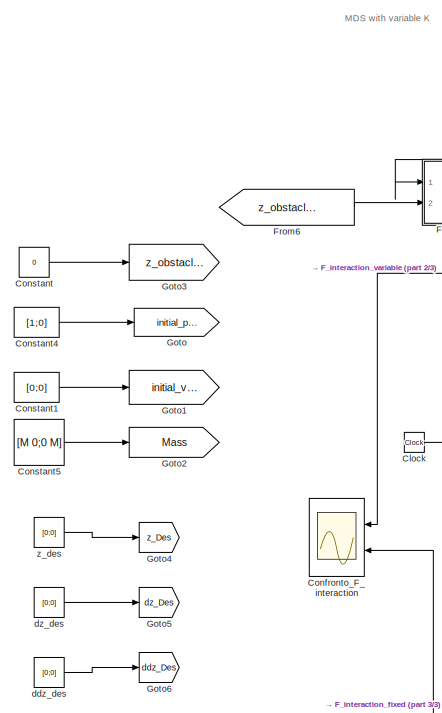
[diagram: root canvas - part 1/3, middle left region]
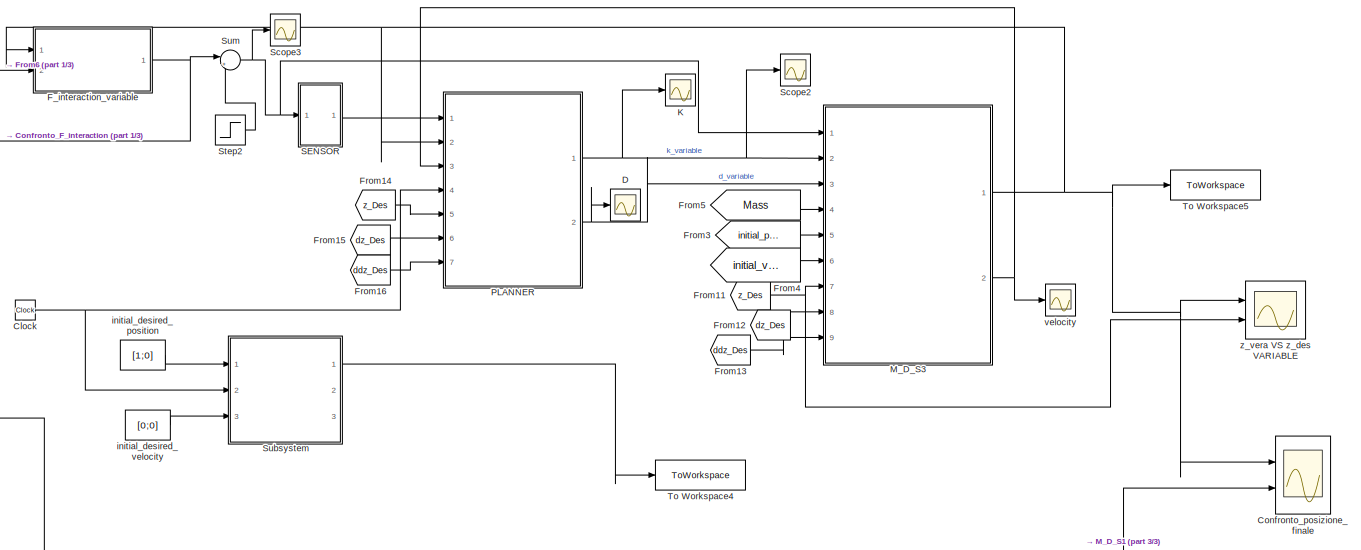
[diagram: root canvas - part 2/3, full width, middle band]
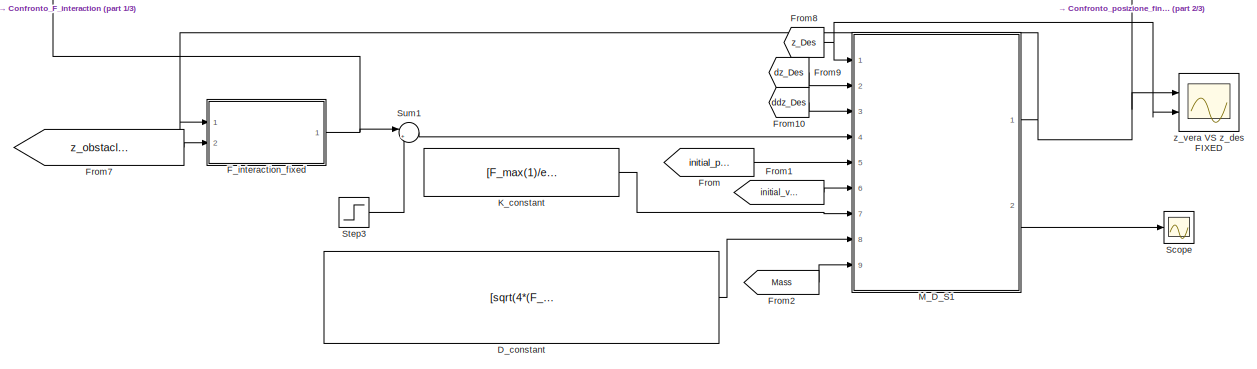
[diagram: root canvas - part 3/3, bottom center region]
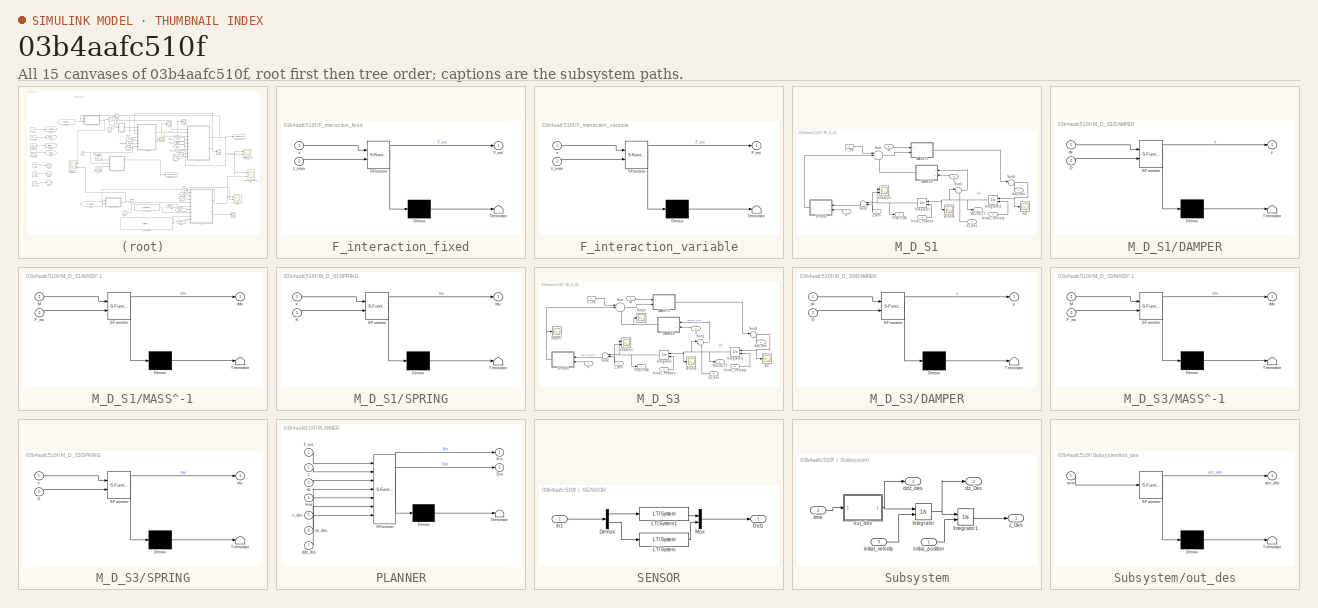
[diagram: thumbnail index - all 15 canvases of the model, root first then tree order]
MODEL slx_03b4aafc510f
KIND model
CONFIG AbsTol = auto
CONFIG EnableMultiTasking = off
CONFIG FixedStep = 0.001
CONFIG MaxStep = auto
CONFIG MinStep = auto
CONFIG RelTol = 1e-3
CONFIG SampleTimeConstraint = Unconstrained
CONFIG SolverName = FixedStepAuto
CONFIG StartTime = 0.0
CONFIG StopTime = 10
BLOCK [Clock] Clock
BLOCK [Scope] Confronto_F_interaction
  Commented = on
  Floating = off
  NumInputPorts = 2
  Ports = [2]
  ScopeSpecificationString = Simulink.scopes.TimeScopeBlockCfg('CurrentConfiguration', extmgr.ConfigurationSet(extmgr.Configuration('Core','General UI',true),extmgr.Configuration('Core','Source UI',true),extmgr.Configuration('Sources','WiredSimulink',true,'DataLoggingVariableName','ScopeData3'),extmgr.Configuration('Visuals','Time Domain',true,'SerializedDisplays',{struct('MinYLimReal','-35.14791','MaxYLimReal','316.3312','YL...<+1582ch>
BLOCK [Scope] Confronto_posizione_finale
  Floating = off
  NumInputPorts = 2
  Ports = [2]
  ScopeSpecificationString = Simulink.scopes.TimeScopeBlockCfg('CurrentConfiguration', extmgr.ConfigurationSet(extmgr.Configuration('Core','General UI',true),extmgr.Configuration('Core','Source UI',true),extmgr.Configuration('Sources','WiredSimulink',true,'DataLoggingVariableName','ScopeData4'),extmgr.Configuration('Visuals','Time Domain',true,'SerializedDisplays',{struct('MinYLimReal','-490.00181','MaxYLimReal','415.41886','...<+1647ch>
BLOCK [Constant] Constant
  Value = 0
BLOCK [Constant] Constant1
  Value = [0;0]
BLOCK [Constant] Constant4
  Value = [1;0]
BLOCK [Constant] Constant5
  Value = [M 0;0 M]
BLOCK [Scope] D
  Floating = off
  NumInputPorts = 1
  Ports = [1]
  ScopeSpecificationString = Simulink.scopes.TimeScopeBlockCfg('CurrentConfiguration', extmgr.ConfigurationSet(extmgr.Configuration('Core','General UI',true),extmgr.Configuration('Core','Source UI',true),extmgr.Configuration('Sources','WiredSimulink',true,'DataLoggingVariableName','ScopeData2'),extmgr.Configuration('Visuals','Time Domain',true,'SerializedDisplays',{struct('MinYLimReal','-5.00000','MaxYLimReal','45.00000','YLa...<+1449ch>
BLOCK [Constant] D_constant
  Value = [sqrt(4*(F_max(1)/e_max)*mass)/10 0; 0 sqrt(4*(F_max(2)/e_max)*mass)/10]
BLOCK [SubSystem] F_interaction_fixed
  Commented = on
  ErrorFcn = Stateflow.Translate.translate
  PermitHierarchicalResolution = ExplicitOnly
  Ports = [2, 1]
  RequestExecContextInheritance = off
  SFBlockType = MATLAB Function
  TreatAsAtomicUnit = on
BLOCK [Demux] F_interaction_fixed/ Demux 
  Outputs = 1
  Ports = [1, 1]
BLOCK [S-Function] F_interaction_fixed/ SFunction 
  EnableBusSupport = on
  FunctionName = sf_sfun
  PortCounts = [2 2]
  Ports = [2, 2]
  SFcnIsStateOwnerBlock = off
  SFunctionDeploymentMode = off
  Tag = Stateflow S-Function 6
BLOCK [Terminator] F_interaction_fixed/ Terminator 
BLOCK [Outport] F_interaction_fixed/F_ext
BLOCK [Inport] F_interaction_fixed/z
BLOCK [Inport] F_interaction_fixed/z_muro
  Port = 2
BLOCK [SubSystem] F_interaction_variable
  Commented = on
  ErrorFcn = Stateflow.Translate.translate
  PermitHierarchicalResolution = ExplicitOnly
  Ports = [2, 1]
  RequestExecContextInheritance = off
  SFBlockType = MATLAB Function
  TreatAsAtomicUnit = on
BLOCK [Demux] F_interaction_variable/ Demux 
  Outputs = 1
  Ports = [1, 1]
BLOCK [S-Function] F_interaction_variable/ SFunction 
  EnableBusSupport = on
  FunctionName = sf_sfun
  PortCounts = [2 2]
  Ports = [2, 2]
  SFcnIsStateOwnerBlock = off
  SFunctionDeploymentMode = off
  Tag = Stateflow S-Function 2
BLOCK [Terminator] F_interaction_variable/ Terminator 
BLOCK [Outport] F_interaction_variable/F_ext
BLOCK [Inport] F_interaction_variable/z
BLOCK [Inport] F_interaction_variable/z_muro
  Port = 2
BLOCK [From] From
  GotoTag = initial_pos
BLOCK [From] From1
  GotoTag = initial_vel
BLOCK [From] From10
  GotoTag = ddz_Des
BLOCK [From] From11
  GotoTag = z_Des
BLOCK [From] From12
  GotoTag = dz_Des
BLOCK [From] From13
  GotoTag = ddz_Des
BLOCK [From] From14
  GotoTag = z_Des
BLOCK [From] From15
  GotoTag = dz_Des
BLOCK [From] From16
  GotoTag = ddz_Des
BLOCK [From] From2
  GotoTag = Mass
BLOCK [From] From3
  GotoTag = initial_pos
BLOCK [From] From4
  GotoTag = initial_vel
BLOCK [From] From5
  GotoTag = Mass
BLOCK [From] From6
  GotoTag = z_obstacle_for_interaction
BLOCK [From] From7
  GotoTag = z_obstacle_for_interaction
BLOCK [From] From8
  GotoTag = z_Des
BLOCK [From] From9
  GotoTag = dz_Des
BLOCK [Goto] Goto
  GotoTag = initial_pos
BLOCK [Goto] Goto1
  GotoTag = initial_vel
BLOCK [Goto] Goto2
  GotoTag = Mass
BLOCK [Goto] Goto3
  GotoTag = z_obstacle_for_interaction
BLOCK [Goto] Goto4
  GotoTag = z_Des
BLOCK [Goto] Goto5
  GotoTag = dz_Des
BLOCK [Goto] Goto6
  GotoTag = ddz_Des
BLOCK [Scope] K
  Floating = off
  NumInputPorts = 1
  Ports = [1]
  ScopeSpecificationString = Simulink.scopes.TimeScopeBlockCfg('CurrentConfiguration', extmgr.ConfigurationSet(extmgr.Configuration('Core','General UI',true),extmgr.Configuration('Core','Source UI',true),extmgr.Configuration('Sources','WiredSimulink',true,'DataLoggingVariableName','ScopeData1'),extmgr.Configuration('Visuals','Time Domain',true,'SerializedDisplays',{struct('MinYLimReal','43.59006','MaxYLimReal','154.41582','YL...<+1497ch>
BLOCK [Constant] K_constant
  Value = [F_max(1)/e_max 0; 0 F_max(2)/e_max]
BLOCK [SubSystem] M_D_S1
  Ports = [9, 2]
  RequestExecContextInheritance = off
BLOCK [Inport] M_D_S1/D
  Port = 8
BLOCK [SubSystem] M_D_S1/DAMPER
  ErrorFcn = Stateflow.Translate.translate
  PermitHierarchicalResolution = ExplicitOnly
  Ports = [2, 1]
  RequestExecContextInheritance = off
  SFBlockType = MATLAB Function
  TreatAsAtomicUnit = on
BLOCK [Demux] M_D_S1/DAMPER/ Demux 
  Outputs = 1
  Ports = [1, 1]
BLOCK [S-Function] M_D_S1/DAMPER/ SFunction 
  EnableBusSupport = on
  FunctionName = sf_sfun
  PortCounts = [2 2]
  Ports = [2, 2]
  SFcnIsStateOwnerBlock = off
  SFunctionDeploymentMode = off
  Tag = Stateflow S-Function 3
BLOCK [Terminator] M_D_S1/DAMPER/ Terminator 
BLOCK [Inport] M_D_S1/DAMPER/D
  Port = 2
BLOCK [Inport] M_D_S1/DAMPER/dx
BLOCK [Outport] M_D_S1/DAMPER/y
BLOCK [Inport] M_D_S1/F_ext
  Port = 4
BLOCK [Inport] M_D_S1/Initial_Position
  Port = 5
BLOCK [Inport] M_D_S1/Initial_Velocity
  Port = 6
BLOCK [Integrator] M_D_S1/Integrator
  InitialConditionSource = external
  Ports = [2, 1]
BLOCK [Integrator] M_D_S1/Integrator1
  InitialConditionSource = external
  Ports = [2, 1]
BLOCK [Inport] M_D_S1/K
  Port = 7
BLOCK [Inport] M_D_S1/M
  Port = 9
BLOCK [SubSystem] M_D_S1/MASS^-1
  ErrorFcn = Stateflow.Translate.translate
  PermitHierarchicalResolution = ExplicitOnly
  Ports = [2, 1]
  RequestExecContextInheritance = off
  SFBlockType = MATLAB Function
  TreatAsAtomicUnit = on
BLOCK [Demux] M_D_S1/MASS^-1/ Demux 
  Outputs = 1
  Ports = [1, 1]
BLOCK [S-Function] M_D_S1/MASS^-1/ SFunction 
  EnableBusSupport = on
  FunctionName = sf_sfun
  PortCounts = [2 2]
  Ports = [2, 2]
  SFcnIsStateOwnerBlock = off
  SFunctionDeploymentMode = off
  Tag = Stateflow S-Function 4
BLOCK [Terminator] M_D_S1/MASS^-1/ Terminator 
BLOCK [Inport] M_D_S1/MASS^-1/F_tot
  Port = 2
BLOCK [Inport] M_D_S1/MASS^-1/M
BLOCK [Outport] M_D_S1/MASS^-1/ddx
BLOCK [Outport] M_D_S1/POSITION
BLOCK [SubSystem] M_D_S1/SPRING
  ErrorFcn = Stateflow.Translate.translate
  PermitHierarchicalResolution = ExplicitOnly
  Ports = [2, 1]
  RequestExecContextInheritance = off
  SFBlockType = MATLAB Function
  TreatAsAtomicUnit = on
BLOCK [Demux] M_D_S1/SPRING/ Demux 
  Outputs = 1
  Ports = [1, 1]
BLOCK [S-Function] M_D_S1/SPRING/ SFunction 
  EnableBusSupport = on
  FunctionName = sf_sfun
  PortCounts = [2 2]
  Ports = [2, 2]
  SFcnIsStateOwnerBlock = off
  SFunctionDeploymentMode = off
  Tag = Stateflow S-Function 5
BLOCK [Terminator] M_D_S1/SPRING/ Terminator 
BLOCK [Inport] M_D_S1/SPRING/K
  Port = 2
BLOCK [Outport] M_D_S1/SPRING/tau
BLOCK [Inport] M_D_S1/SPRING/x
BLOCK [Sum] M_D_S1/Sum
  Inputs = |+++
  Ports = [3, 1]
BLOCK [Sum] M_D_S1/Sum1
  Inputs = |+-
  Ports = [2, 1]
BLOCK [Sum] M_D_S1/Sum2
  Inputs = |+-
  Ports = [2, 1]
BLOCK [Sum] M_D_S1/Sum3
  Inputs = |++
  Ports = [2, 1]
BLOCK [Outport] M_D_S1/VELOCITY
  Port = 2
BLOCK [Scope] M_D_S1/acc
  Floating = off
  NumInputPorts = 1
  Ports = [1]
  ScopeSpecificationString = Simulink.scopes.TimeScopeBlockCfg('CurrentConfiguration', extmgr.ConfigurationSet(extmgr.Configuration('Core','General UI',true),extmgr.Configuration('Core','Source UI',true),extmgr.Configuration('Sources','WiredSimulink',true,'DataLoggingVariableName','ScopeData6'),extmgr.Configuration('Visuals','Time Domain',true,'SerializedDisplays',{struct('MinYLimReal','-6.18449','MaxYLimReal','6.24278','YLab...<+1392ch>
BLOCK [Inport] M_D_S1/ddz_des
  Port = 3
BLOCK [Inport] M_D_S1/dz_des
  Port = 2
BLOCK [Scope] M_D_S1/posizione
  Floating = off
  NumInputPorts = 2
  Ports = [2]
  ScopeSpecificationString = Simulink.scopes.TimeScopeBlockCfg('CurrentConfiguration', extmgr.ConfigurationSet(extmgr.Configuration('Core','General UI',true),extmgr.Configuration('Core','Source UI',true),extmgr.Configuration('Sources','WiredSimulink',true,'DataLoggingVariableName','ScopeData8'),extmgr.Configuration('Visuals','Time Domain',true,'SerializedDisplays',{struct('MinYLimReal','-1.73628','MaxYLimReal','0.19292','YLab...<+1402ch>
BLOCK [Scope] M_D_S1/velocita
  Floating = off
  NumInputPorts = 1
  Ports = [1]
  ScopeSpecificationString = Simulink.scopes.TimeScopeBlockCfg('CurrentConfiguration', extmgr.ConfigurationSet(extmgr.Configuration('Core','General UI',true),extmgr.Configuration('Core','Source UI',true),extmgr.Configuration('Sources','WiredSimulink',true,'DataLoggingVariableName','ScopeData7'),extmgr.Configuration('Visuals','Time Domain',true,'SerializedDisplays',{struct('MinYLimReal','-0.56067','MaxYLimReal','0.06462','YLab...<+1399ch>
BLOCK [Inport] M_D_S1/z_des
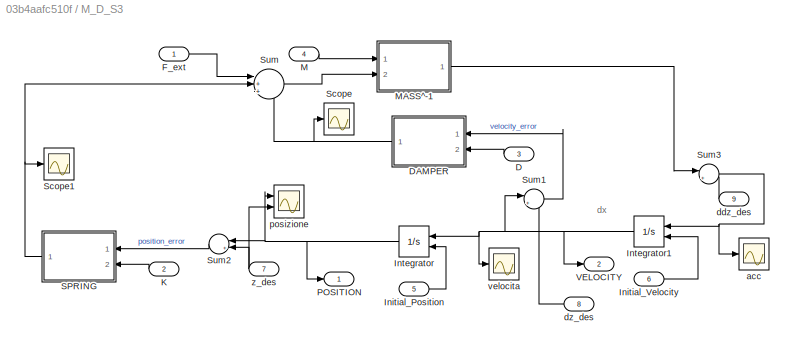
BLOCK [SubSystem] M_D_S3
  Ports = [9, 2]
  RequestExecContextInheritance = off
BLOCK [Inport] M_D_S3/D
  Port = 3
BLOCK [SubSystem] M_D_S3/DAMPER
  ErrorFcn = Stateflow.Translate.translate
  PermitHierarchicalResolution = ExplicitOnly
  Ports = [2, 1]
  RequestExecContextInheritance = off
  SFBlockType = MATLAB Function
  TreatAsAtomicUnit = on
BLOCK [Demux] M_D_S3/DAMPER/ Demux 
  Outputs = 1
  Ports = [1, 1]
BLOCK [S-Function] M_D_S3/DAMPER/ SFunction 
  EnableBusSupport = on
  FunctionName = sf_sfun
  PortCounts = [2 2]
  Ports = [2, 2]
  SFcnIsStateOwnerBlock = off
  SFunctionDeploymentMode = off
  Tag = Stateflow S-Function 11
BLOCK [Terminator] M_D_S3/DAMPER/ Terminator 
BLOCK [Inport] M_D_S3/DAMPER/D
  Port = 2
BLOCK [Inport] M_D_S3/DAMPER/dx
BLOCK [Outport] M_D_S3/DAMPER/y
BLOCK [Inport] M_D_S3/F_ext
BLOCK [Inport] M_D_S3/Initial_Position
  Port = 5
BLOCK [Inport] M_D_S3/Initial_Velocity
  Port = 6
BLOCK [Integrator] M_D_S3/Integrator
  InitialConditionSource = external
  Ports = [2, 1]
BLOCK [Integrator] M_D_S3/Integrator1
  InitialConditionSource = external
  Ports = [2, 1]
BLOCK [Inport] M_D_S3/K
  Port = 2
BLOCK [Inport] M_D_S3/M
  Port = 4
BLOCK [SubSystem] M_D_S3/MASS^-1
  ErrorFcn = Stateflow.Translate.translate
  PermitHierarchicalResolution = ExplicitOnly
  Ports = [2, 1]
  RequestExecContextInheritance = off
  SFBlockType = MATLAB Function
  TreatAsAtomicUnit = on
BLOCK [Demux] M_D_S3/MASS^-1/ Demux 
  Outputs = 1
  Ports = [1, 1]
BLOCK [S-Function] M_D_S3/MASS^-1/ SFunction 
  EnableBusSupport = on
  FunctionName = sf_sfun
  PortCounts = [2 2]
  Ports = [2, 2]
  SFcnIsStateOwnerBlock = off
  SFunctionDeploymentMode = off
  Tag = Stateflow S-Function 12
BLOCK [Terminator] M_D_S3/MASS^-1/ Terminator 
BLOCK [Inport] M_D_S3/MASS^-1/F_tot
  Port = 2
BLOCK [Inport] M_D_S3/MASS^-1/M
BLOCK [Outport] M_D_S3/MASS^-1/ddx
BLOCK [Outport] M_D_S3/POSITION
BLOCK [SubSystem] M_D_S3/SPRING
  ErrorFcn = Stateflow.Translate.translate
  PermitHierarchicalResolution = ExplicitOnly
  Ports = [2, 1]
  RequestExecContextInheritance = off
  SFBlockType = MATLAB Function
  TreatAsAtomicUnit = on
BLOCK [Demux] M_D_S3/SPRING/ Demux 
  Outputs = 1
  Ports = [1, 1]
BLOCK [S-Function] M_D_S3/SPRING/ SFunction 
  EnableBusSupport = on
  FunctionName = sf_sfun
  PortCounts = [2 2]
  Ports = [2, 2]
  SFcnIsStateOwnerBlock = off
  SFunctionDeploymentMode = off
  Tag = Stateflow S-Function 13
BLOCK [Terminator] M_D_S3/SPRING/ Terminator 
BLOCK [Inport] M_D_S3/SPRING/K
  Port = 2
BLOCK [Outport] M_D_S3/SPRING/tau
BLOCK [Inport] M_D_S3/SPRING/x
BLOCK [Scope] M_D_S3/Scope
  Floating = off
  NumInputPorts = 1
  Ports = [1]
  ScopeSpecificationString = Simulink.scopes.TimeScopeBlockCfg('CurrentConfiguration', extmgr.ConfigurationSet(extmgr.Configuration('Core','General UI',true),extmgr.Configuration('Core','Source UI',true),extmgr.Configuration('Sources','WiredSimulink',true,'DataLoggingVariableName','ScopeData15'),extmgr.Configuration('Visuals','Time Domain',true,'SerializedDisplays',{struct('MinYLimReal','-37.99931','MaxYLimReal','6.12026','YL...<+1429ch>
BLOCK [Scope] M_D_S3/Scope1
  Floating = off
  NumInputPorts = 1
  Ports = [1]
  ScopeSpecificationString = Simulink.scopes.TimeScopeBlockCfg('CurrentConfiguration', extmgr.ConfigurationSet(extmgr.Configuration('Core','General UI',true),extmgr.Configuration('Core','Source UI',true),extmgr.Configuration('Sources','WiredSimulink',true,'DataLoggingVariableName','ScopeData17'),extmgr.Configuration('Visuals','Time Domain',true,'SerializedDisplays',{struct('MinYLimReal','-42.49417','MaxYLimReal','4.72157','YL...<+1454ch>
BLOCK [Sum] M_D_S3/Sum
  Inputs = |+++
  Ports = [3, 1]
BLOCK [Sum] M_D_S3/Sum1
  Inputs = |+-
  Ports = [2, 1]
BLOCK [Sum] M_D_S3/Sum2
  Inputs = |+-
  Ports = [2, 1]
BLOCK [Sum] M_D_S3/Sum3
  Inputs = |++
  Ports = [2, 1]
BLOCK [Outport] M_D_S3/VELOCITY
  Port = 2
BLOCK [Scope] M_D_S3/acc
  Floating = off
  NumInputPorts = 1
  Ports = [1]
  ScopeSpecificationString = Simulink.scopes.TimeScopeBlockCfg('CurrentConfiguration', extmgr.ConfigurationSet(extmgr.Configuration('Core','General UI',true),extmgr.Configuration('Core','Source UI',true),extmgr.Configuration('Sources','WiredSimulink',true,'DataLoggingVariableName','ScopeData6'),extmgr.Configuration('Visuals','Time Domain',true,'SerializedDisplays',{struct('MinYLimReal','-7.22729','MaxYLimReal','16.68265','YLa...<+1407ch>
BLOCK [Inport] M_D_S3/ddz_des
  Port = 9
BLOCK [Inport] M_D_S3/dz_des
  Port = 8
BLOCK [Scope] M_D_S3/posizione
  Floating = off
  NumInputPorts = 2
  Ports = [2]
  ScopeSpecificationString = Simulink.scopes.TimeScopeBlockCfg('CurrentConfiguration', extmgr.ConfigurationSet(extmgr.Configuration('Core','General UI',true),extmgr.Configuration('Core','Source UI',true),extmgr.Configuration('Sources','WiredSimulink',true,'DataLoggingVariableName','ScopeData8'),extmgr.Configuration('Visuals','Time Domain',true,'SerializedDisplays',{struct('MinYLimReal','-0.74375','MaxYLimReal','1.19375','YLab...<+1431ch>
BLOCK [Scope] M_D_S3/velocita
  Floating = off
  NumInputPorts = 1
  Ports = [1]
  ScopeSpecificationString = Simulink.scopes.TimeScopeBlockCfg('CurrentConfiguration', extmgr.ConfigurationSet(extmgr.Configuration('Core','General UI',true),extmgr.Configuration('Core','Source UI',true),extmgr.Configuration('Sources','WiredSimulink',true,'DataLoggingVariableName','ScopeData7'),extmgr.Configuration('Visuals','Time Domain',true,'SerializedDisplays',{struct('MinYLimReal','-0.62785','MaxYLimReal','0.50433','YLab...<+1417ch>
BLOCK [Inport] M_D_S3/z_des
  Port = 7
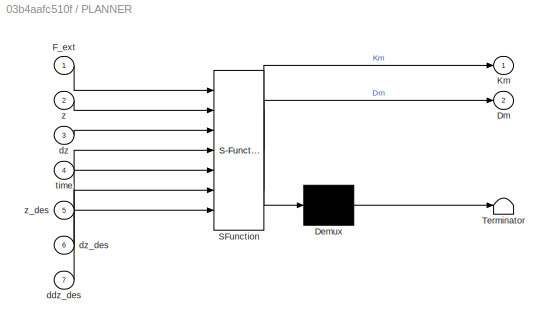
BLOCK [SubSystem] PLANNER
  ErrorFcn = Stateflow.Translate.translate
  PermitHierarchicalResolution = ExplicitOnly
  Ports = [7, 2]
  RequestExecContextInheritance = off
  SFBlockType = MATLAB Function
  TreatAsAtomicUnit = on
BLOCK [Demux] PLANNER/ Demux 
  Outputs = 1
  Ports = [1, 1]
BLOCK [S-Function] PLANNER/ SFunction 
  EnableBusSupport = on
  FunctionName = sf_sfun
  Parameters = F_int_max,F_max,e_max,mass,ts_bound
  PortCounts = [7 3]
  Ports = [7, 3]
  SFcnIsStateOwnerBlock = off
  SFunctionDeploymentMode = off
  Tag = Stateflow S-Function 18
BLOCK [Terminator] PLANNER/ Terminator 
BLOCK [Outport] PLANNER/Dm
  Port = 2
BLOCK [Inport] PLANNER/F_ext
BLOCK [Outport] PLANNER/Km
BLOCK [Inport] PLANNER/ddz_des
  Port = 7
BLOCK [Inport] PLANNER/dz
  Port = 3
BLOCK [Inport] PLANNER/dz_des
  Port = 6
BLOCK [Inport] PLANNER/time
  Port = 4
BLOCK [Inport] PLANNER/z
  Port = 2
BLOCK [Inport] PLANNER/z_des
  Port = 5
BLOCK [SubSystem] SENSOR
  Commented = through
  Ports = [1, 1]
  RequestExecContextInheritance = off
BLOCK [Demux] SENSOR/Demux
  Outputs = 2
  Ports = [1, 2]
BLOCK [Inport] SENSOR/In1
BLOCK [Reference] SENSOR/LTI System  REF=cstblocks/LTI System
  Ports = [1, 1]
  SourceBlock = cstblocks/LTI System
  SourceProductBaseCode = CT
  SourceType = LTI Block
BLOCK [Reference] SENSOR/LTI System1  REF=cstblocks/LTI System
  Ports = [1, 1]
  SourceBlock = cstblocks/LTI System
  SourceProductBaseCode = CT
  SourceType = LTI Block
BLOCK [Mux] SENSOR/Mux
  DisplayOption = bar
  Inputs = 2
  Ports = [2, 1]
BLOCK [Outport] SENSOR/Out1
BLOCK [Scope] Scope
  Floating = off
  NumInputPorts = 1
  Ports = [1]
  ScopeSpecificationString = Simulink.scopes.TimeScopeBlockCfg('CurrentConfiguration', extmgr.ConfigurationSet(extmgr.Configuration('Core','General UI',true),extmgr.Configuration('Core','Source UI',true),extmgr.Configuration('Sources','WiredSimulink',true,'DataLoggingVariableName','ScopeData5'),extmgr.Configuration('Visuals','Time Domain',true,'SerializedDisplays',{struct('MinYLimReal','-0.62602','MaxYLimReal','0.48778','YLab...<+1409ch>
BLOCK [Scope] Scope2
  Floating = off
  NumInputPorts = 1
  Ports = [1]
  ScopeSpecificationString = Simulink.scopes.TimeScopeBlockCfg('CurrentConfiguration', extmgr.ConfigurationSet(extmgr.Configuration('Core','General UI',true),extmgr.Configuration('Core','Source UI',true),extmgr.Configuration('Sources','WiredSimulink',true,'DataLoggingVariableName','ScopeData14'),extmgr.Configuration('Visuals','Time Domain',true),extmgr.Configuration('Tools','Plot Navigation',true),extmgr.Configuration('Tools'...<+41ch>
BLOCK [Scope] Scope3
  Floating = off
  NumInputPorts = 1
  Ports = [1]
  ScopeSpecificationString = Simulink.scopes.TimeScopeBlockCfg('CurrentConfiguration', extmgr.ConfigurationSet(extmgr.Configuration('Core','General UI',true),extmgr.Configuration('Core','Source UI',true),extmgr.Configuration('Sources','WiredSimulink',true,'DataLoggingVariableName','ScopeData16'),extmgr.Configuration('Visuals','Time Domain',true,'SerializedDisplays',{struct('MinYLimReal','-1.00000','MaxYLimReal','1.00000','YLa...<+1446ch>
BLOCK [Step] Step2
  After = [0;0]
  Before = [0;0]
  SampleTime = 0
  Time = 0
BLOCK [Step] Step3
  After = [0; 0]
  Before = [0;0]
  SampleTime = 0
  Time = 0
BLOCK [SubSystem] Subsystem
  Commented = on
  Ports = [3, 3]
  RequestExecContextInheritance = off
BLOCK [Integrator] Subsystem/Integrator
  InitialConditionSource = external
  Ports = [2, 1]
BLOCK [Integrator] Subsystem/Integrator1
  InitialConditionSource = external
  Ports = [2, 1]
BLOCK [Outport] Subsystem/ddz_des
  Port = 3
BLOCK [Outport] Subsystem/dz_Des
  Port = 2
BLOCK [Inport] Subsystem/initial_position
BLOCK [Inport] Subsystem/initial_velocity
  Port = 3
BLOCK [SubSystem] Subsystem/out_des
  ErrorFcn = Stateflow.Translate.translate
  PermitHierarchicalResolution = ExplicitOnly
  Ports = [1, 1]
  RequestExecContextInheritance = off
  SFBlockType = MATLAB Function
  TreatAsAtomicUnit = on
BLOCK [Demux] Subsystem/out_des/ Demux 
  Outputs = 1
  Ports = [1, 1]
BLOCK [S-Function] Subsystem/out_des/ SFunction 
  EnableBusSupport = on
  FunctionName = sf_sfun
  PortCounts = [1 2]
  Ports = [1, 2]
  SFcnIsStateOwnerBlock = off
  SFunctionDeploymentMode = off
  Tag = Stateflow S-Function 1
BLOCK [Terminator] Subsystem/out_des/ Terminator 
BLOCK [Outport] Subsystem/out_des/acc_des
BLOCK [Inport] Subsystem/out_des/time
BLOCK [Inport] Subsystem/time
  Port = 2
BLOCK [Outport] Subsystem/z_Des
BLOCK [Sum] Sum
  Inputs = |++
  Ports = [2, 1]
BLOCK [Sum] Sum1
  Inputs = |++
  Ports = [2, 1]
BLOCK [ToWorkspace] To Workspace4
  FixptAsFi = on
  MaxDataPoints = inf
  Ports = [1]
  SampleTime = -1
  Save2DSignal = 2-D array (concatenate along first dimension)
  SaveFormat = Structure With Time
  VariableName = z_des1
BLOCK [ToWorkspace] To Workspace5
  FixptAsFi = on
  MaxDataPoints = inf
  Ports = [1]
  SampleTime = -1
  SaveFormat = Structure With Time
  VariableName = z
BLOCK [Constant] ddz_des
  Value = [0;0]
BLOCK [Constant] dz_des
  Value = [0;0]
BLOCK [Constant] initial_desired_position
  Value = [1;0]
BLOCK [Constant] initial_desired_velocity
  Value = [0;0]
BLOCK [Scope] velocity
  Floating = off
  NumInputPorts = 1
  Ports = [1]
  ScopeSpecificationString = Simulink.scopes.TimeScopeBlockCfg('CurrentConfiguration', extmgr.ConfigurationSet(extmgr.Configuration('Core','General UI',true),extmgr.Configuration('Core','Source UI',true),extmgr.Configuration('Sources','WiredSimulink',true,'DataLoggingVariableName','ScopeData9'),extmgr.Configuration('Visuals','Time Domain',true,'SerializedDisplays',{struct('MinYLimReal','-49849253962772228502005780272617451229...<+3838ch>
BLOCK [Constant] z_des
  Value = [0;0]
BLOCK [Scope] z_vera VS z_des FIXED
  Floating = off
  NumInputPorts = 2
  Ports = [2]
  ScopeSpecificationString = Simulink.scopes.TimeScopeBlockCfg('CurrentConfiguration', extmgr.ConfigurationSet(extmgr.Configuration('Core','General UI',true),extmgr.Configuration('Core','Source UI',true),extmgr.Configuration('Sources','WiredSimulink',true,'DataLoggingVariableName','ScopeData10'),extmgr.Configuration('Visuals','Time Domain',true,'SerializedDisplays',{struct('MinYLimReal','-0.00169','MaxYLimReal','0.0152','YLab...<+1631ch>
BLOCK [Scope] z_vera VS z_des VARIABLE
  Floating = off
  NumInputPorts = 2
  Ports = [2]
  ScopeSpecificationString = Simulink.scopes.TimeScopeBlockCfg('CurrentConfiguration', extmgr.ConfigurationSet(extmgr.Configuration('Core','General UI',true),extmgr.Configuration('Core','Source UI',true),extmgr.Configuration('Sources','WiredSimulink',true),extmgr.Configuration('Visuals','Time Domain',true,'SerializedDisplays',{struct('MinYLimReal','-1.10241','MaxYLimReal','1.2336','YLabelReal','','MinYLimMag','0.00000','MaxYL...<+1578ch>
ANNOTATION (root): MDS with variable K
ANNOTATION M_D_S1: dx
ANNOTATION M_D_S3: dx
NET Clock:1 -> PLANNER:4, Subsystem:2
LINE Constant1:1 -> Goto1:1
LINE Constant4:1 -> Goto:1
LINE Constant5:1 -> Goto2:1
LINE Constant:1 -> Goto3:1
LINE D_constant:1 -> M_D_S1:8
NET F_interaction_fixed:1 -> Confronto_F_interaction:2, Sum1:1
NET F_interaction_variable:1 -> Confronto_F_interaction:1, Sum:1
LINE From10:1 -> M_D_S1:3
NET From11:1 -> M_D_S3:7, z_vera VS z_des VARIABLE:2
LINE From12:1 -> M_D_S3:8
LINE From13:1 -> M_D_S3:9
LINE From14:1 -> PLANNER:5
LINE From15:1 -> PLANNER:6
LINE From16:1 -> PLANNER:7
LINE From1:1 -> M_D_S1:6
LINE From2:1 -> M_D_S1:9
LINE From3:1 -> M_D_S3:5
LINE From4:1 -> M_D_S3:6
LINE From5:1 -> M_D_S3:4
LINE From6:1 -> F_interaction_variable:2
LINE From7:1 -> F_interaction_fixed:2
NET From8:1 -> M_D_S1:1, z_vera VS z_des FIXED:2
LINE From9:1 -> M_D_S1:2
LINE From:1 -> M_D_S1:5
LINE K_constant:1 -> M_D_S1:7
LINE M_D_S1/D:1 -> M_D_S1/DAMPER:2
LINE M_D_S1/DAMPER:1 -> M_D_S1/Sum:3
LINE M_D_S1/F_ext:1 -> M_D_S1/Sum:1
LINE M_D_S1/Initial_Position:1 -> M_D_S1/Integrator:2
LINE M_D_S1/Initial_Velocity:1 -> M_D_S1/Integrator1:2
NET M_D_S1/Integrator1:1 -> M_D_S1/Integrator:1, M_D_S1/Sum1:1, M_D_S1/VELOCITY:1, M_D_S1/velocita:1
NET M_D_S1/Integrator:1 -> M_D_S1/POSITION:1, M_D_S1/Sum2:1, M_D_S1/posizione:1
LINE M_D_S1/K:1 -> M_D_S1/SPRING:2
LINE M_D_S1/M:1 -> M_D_S1/MASS^-1:1
LINE M_D_S1/MASS^-1:1 -> M_D_S1/Sum3:1
LINE M_D_S1/SPRING:1 -> M_D_S1/Sum:2
LINE M_D_S1/Sum1:1 -> M_D_S1/DAMPER:1
LINE M_D_S1/Sum2:1 -> M_D_S1/SPRING:1
NET M_D_S1/Sum3:1 -> M_D_S1/Integrator1:1, M_D_S1/acc:1
LINE M_D_S1/Sum:1 -> M_D_S1/MASS^-1:2
LINE M_D_S1/ddz_des:1 -> M_D_S1/Sum3:2
LINE M_D_S1/dz_des:1 -> M_D_S1/Sum1:2
NET M_D_S1/z_des:1 -> M_D_S1/Sum2:2, M_D_S1/posizione:2
NET M_D_S1:1 -> Confronto_posizione_finale:2, F_interaction_fixed:1, z_vera VS z_des FIXED:1
LINE M_D_S1:2 -> Scope:1
LINE M_D_S3/D:1 -> M_D_S3/DAMPER:2
NET M_D_S3/DAMPER:1 -> M_D_S3/Scope:1, M_D_S3/Sum:3
LINE M_D_S3/F_ext:1 -> M_D_S3/Sum:1
LINE M_D_S3/Initial_Position:1 -> M_D_S3/Integrator:2
LINE M_D_S3/Initial_Velocity:1 -> M_D_S3/Integrator1:2
NET M_D_S3/Integrator1:1 -> M_D_S3/Integrator:1, M_D_S3/Sum1:1, M_D_S3/VELOCITY:1, M_D_S3/velocita:1
NET M_D_S3/Integrator:1 -> M_D_S3/POSITION:1, M_D_S3/Sum2:1, M_D_S3/posizione:1
LINE M_D_S3/K:1 -> M_D_S3/SPRING:2
LINE M_D_S3/M:1 -> M_D_S3/MASS^-1:1
LINE M_D_S3/MASS^-1:1 -> M_D_S3/Sum3:1
NET M_D_S3/SPRING:1 -> M_D_S3/Scope1:1, M_D_S3/Sum:2
LINE M_D_S3/Sum1:1 -> M_D_S3/DAMPER:1
LINE M_D_S3/Sum2:1 -> M_D_S3/SPRING:1
NET M_D_S3/Sum3:1 -> M_D_S3/Integrator1:1, M_D_S3/acc:1
LINE M_D_S3/Sum:1 -> M_D_S3/MASS^-1:2
LINE M_D_S3/ddz_des:1 -> M_D_S3/Sum3:2
LINE M_D_S3/dz_des:1 -> M_D_S3/Sum1:2
NET M_D_S3/z_des:1 -> M_D_S3/Sum2:2, M_D_S3/posizione:2
NET M_D_S3:1 -> Confronto_posizione_finale:1, F_interaction_variable:1, PLANNER:2, To Workspace5:1, z_vera VS z_des VARIABLE:1
NET M_D_S3:2 -> PLANNER:3, velocity:1
NET PLANNER:1 -> K:1, M_D_S3:2, Scope2:1
NET PLANNER:2 -> D:1, M_D_S3:3
LINE SENSOR/Demux:1 -> SENSOR/LTI System1:1
LINE SENSOR/Demux:2 -> SENSOR/LTI System:1
LINE SENSOR/In1:1 -> SENSOR/Demux:1
LINE SENSOR/LTI System1:1 -> SENSOR/Mux:1
LINE SENSOR/LTI System:1 -> SENSOR/Mux:2
LINE SENSOR/Mux:1 -> SENSOR/Out1:1
LINE SENSOR:1 -> PLANNER:1
LINE Step2:1 -> Sum:2
LINE Step3:1 -> Sum1:2
LINE Subsystem/Integrator1:1 -> Subsystem/z_Des:1
NET Subsystem/Integrator:1 -> Subsystem/Integrator1:1, Subsystem/dz_Des:1
LINE Subsystem/initial_position:1 -> Subsystem/Integrator1:2
LINE Subsystem/initial_velocity:1 -> Subsystem/Integrator:2
NET Subsystem/out_des:1 -> Subsystem/Integrator:1, Subsystem/ddz_des:1
LINE Subsystem/time:1 -> Subsystem/out_des:1
LINE Subsystem:1 -> To Workspace4:1
LINE Sum1:1 -> M_D_S1:4
NET Sum:1 -> M_D_S3:1, SENSOR:1, Scope3:1
LINE ddz_des:1 -> Goto6:1
LINE dz_des:1 -> Goto5:1
LINE initial_desired_position:1 -> Subsystem:1
LINE initial_desired_velocity:1 -> Subsystem:3
LINE z_des:1 -> Goto4:1
note: NET lines group one-source signal fan-out (src -> all destinations, sorted); 1:1 wires keep LINE
CHART PLANNER states=1 transitions=1
  STATE_LABEL 'eML_blk_kernel()'
  STATE_LABEL 'SCRIPT:\nfunction [Km,Dm] = fcn(F_max, e_max,F_ext, z, dz, time, z_des, dz_des, ddz_des, F_int_max, mass, ts_bound)\n\n%% Description\n% decrease k after contact is sensed to limit the interaction force\n\n%% Outputs\n% Km            stiffness matrix\n% Dm            damping matrix\n\n%% Inputs\n% time          current simulation time\n% F_ext         measured external force\n% mass          mass scalar value ...<+2993ch>'
CHART Subsystem/out_des states=1 transitions=1
  STATE_LABEL 'eML_blk_kernel()'
  STATE_LABEL 'SCRIPT:\nfunction acc_des = fcn(time)\n%% desired trajectory generator\nif time < 0.1\n    acc_des = [-5;0]; \nelseif time < 3.1\n    acc_des = [0;0];\nelseif time < 3.2\n    acc_des = [5;0];\nelse \n    acc_des = [0;0];\nend\n\n\nend\n'
CHART F_interaction_variable states=1 transitions=1
  STATE_LABEL 'eML_blk_kernel()'
  STATE_LABEL 'SCRIPT:\nfunction F_ext = fcn(z, z_muro)\n% hypothesis: table reaction force with elastic behaviour\nF_ext = zeros(2,1);\nK = 10000;         % 1 mm displacement for 10 kg\nF_ext(1) = 0;\nF_ext(2) = 0;\n% if contact is happened\nif z_muro > z(1)\n    F_ext(1) = K*(z_muro - z(1));\nend'
CHART M_D_S1/DAMPER states=1 transitions=1
  STATE_LABEL 'eML_blk_kernel()'
  STATE_LABEL 'SCRIPT:\nfunction y = fcn(dx, D)\ny = - D*dx;\nend\n'
CHART M_D_S1/MASS^-1 states=1 transitions=1
  STATE_LABEL 'eML_blk_kernel()'
  STATE_LABEL 'SCRIPT:\nfunction ddx = fcn(M,F_tot)\nddx = (M^-1)*F_tot;\nend\n'
CHART M_D_S1/SPRING states=1 transitions=1
  STATE_LABEL 'eML_blk_kernel()'
  STATE_LABEL 'SCRIPT:\nfunction tau = fcn(x, K)\ntau= -K*x;\nend\n\n\n'
CHART F_interaction_fixed states=1 transitions=1
  STATE_LABEL 'eML_blk_kernel()'
  STATE_LABEL 'SCRIPT:\nfunction F_ext = fcn(z, z_muro)\n% hypothesis: table reaction force with elastic behaviour\nF_ext = zeros(2,1);\nK = 10000;         % 1 mm displacement for 10 kg\nF_ext(1) = 0;\nF_ext(2) = 0;\n% if contact is happened\nif z_muro > z(1)\n    F_ext(1) = K*(z_muro - z(1));\nend'
CHART M_D_S3/DAMPER states=1 transitions=1
  STATE_LABEL 'eML_blk_kernel()'
  STATE_LABEL 'SCRIPT:\nfunction y = fcn(dx, D)\ny = - D*dx;\nend\n'
CHART M_D_S3/MASS^-1 states=1 transitions=1
  STATE_LABEL 'eML_blk_kernel()'
  STATE_LABEL 'SCRIPT:\nfunction ddx = fcn(M,F_tot)\nddx = (M^-1)*F_tot;\nend\n'
CHART M_D_S3/SPRING states=1 transitions=1
  STATE_LABEL 'eML_blk_kernel()'
  STATE_LABEL 'SCRIPT:\nfunction tau = fcn(x, K)\ntau= -K*x;\nend\n\n\n'
CHART  states=0 transitions=0
CHART  states=0 transitions=0
CHART  states=0 transitions=0
CHART  states=0 transitions=0
CHART  states=0 transitions=0
CHART  states=0 transitions=0
CHART  states=0 transitions=0
CHART  states=0 transitions=0
CHART  states=0 transitions=0
CHART  states=0 transitions=0
